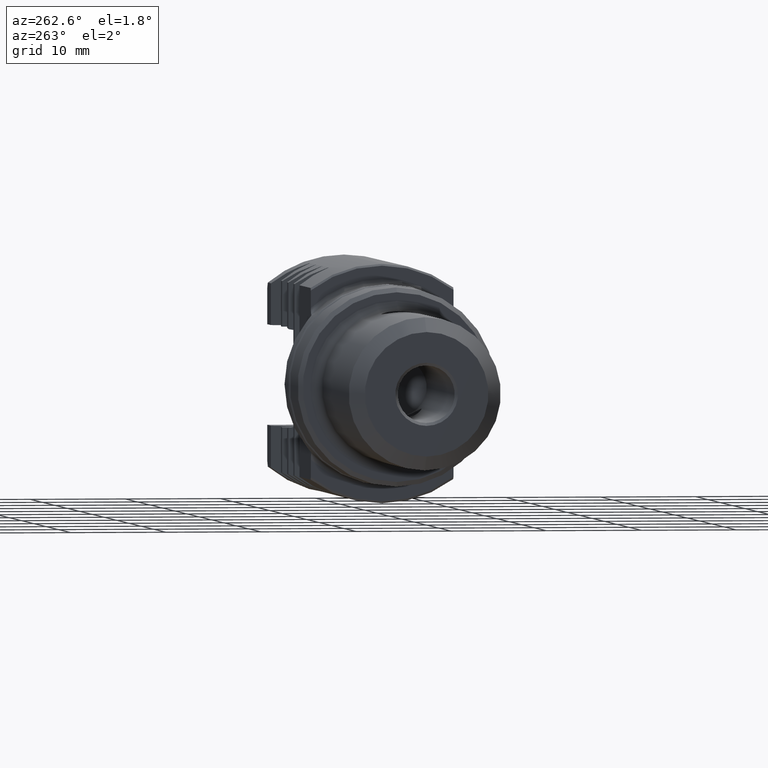
[diagram: clean part render]
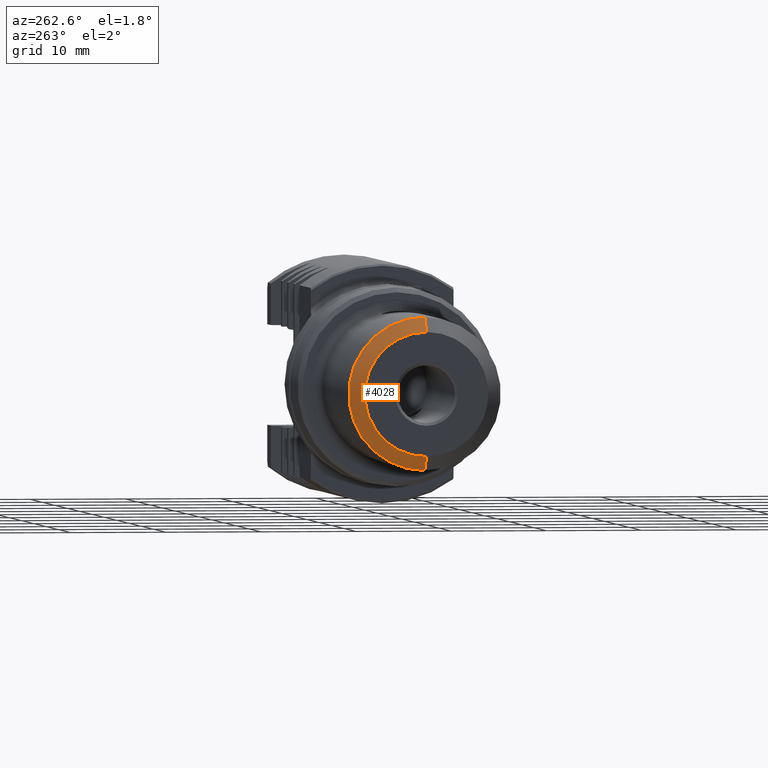
[diagram: same view with one face highlighted and labeled with its STEP entity id]
A machine part, auxiliary view. The second image highlights one B-rep face of the part: STEP entity #4028.
In plain terms, the highlighted conical surface has half-angle 45 deg.
Its self-contained STEP definition (entity closure, byte-faithful):
#103 = AXIS2_PLACEMENT_3D ( 'NONE', #2225, #4216, #1899 ) ;
#576 = DIRECTION ( 'NONE',  ( 0.7071067811865463500, 0.0000000000000000000, -0.7071067811865487900 ) ) ;
#608 = DIRECTION ( 'NONE',  ( 1.000000000000000000, 0.0000000000000000000, 0.0000000000000000000 ) ) ;
#612 = CARTESIAN_POINT ( 'NONE',  ( 1.500000000000001300, 0.0000000000000000000, 0.0000000000000000000 ) ) ;
#619 = DIRECTION ( 'NONE',  ( 0.0000000000000000000, 0.0000000000000000000, -1.000000000000000000 ) ) ;
#918 = FACE_OUTER_BOUND ( 'NONE', #2085, .T. ) ;
#1007 = CONICAL_SURFACE ( 'NONE', #3892, 8.000000000000000000, 0.7853981633974500600 ) ;
#1187 = VERTEX_POINT ( 'NONE', #3932 ) ;
#1409 = EDGE_CURVE ( 'NONE', #1436, #1871, #4125, .T. ) ;
#1436 = VERTEX_POINT ( 'NONE', #2517 ) ;
#1871 = VERTEX_POINT ( 'NONE', #4007 ) ;
#1899 = DIRECTION ( 'NONE',  ( 0.0000000000000000000, 0.0000000000000000000, 1.000000000000000000 ) ) ;
#2018 = LINE ( 'NONE', #2054, #2191 ) ;
#2054 = CARTESIAN_POINT ( 'NONE',  ( 1.500000000000001300, 0.0000000000000000000, -8.000000000000000000 ) ) ;
#2085 = EDGE_LOOP ( 'NONE', ( #3663, #2844, #3987, #4035 ) ) ;
#2191 = VECTOR ( 'NONE', #576, 1000.000000000000000 ) ;
#2225 = CARTESIAN_POINT ( 'NONE',  ( 0.0000000000000000000, 0.0000000000000000000, 0.0000000000000000000 ) ) ;
#2272 = EDGE_CURVE ( 'NONE', #2551, #1871, #2018, .T. ) ;
#2281 = EDGE_CURVE ( 'NONE', #1187, #2551, #3611, .T. ) ;
#2517 = CARTESIAN_POINT ( 'NONE',  ( 1.500000000000001300, 9.797174393178825700E-016, 8.000000000000000000 ) ) ;
#2551 = VERTEX_POINT ( 'NONE', #3117 ) ;
#2557 = DIRECTION ( 'NONE',  ( 0.7071067811865463500, 8.659560562354948900E-017, 0.7071067811865487900 ) ) ;
#2564 = CARTESIAN_POINT ( 'NONE',  ( 1.500000000000001300, 9.797174393178825700E-016, 8.000000000000000000 ) ) ;
#2779 = EDGE_CURVE ( 'NONE', #1187, #1436, #3649, .T. ) ;
#2833 = VECTOR ( 'NONE', #2557, 1000.000000000000000 ) ;
#2844 = ORIENTED_EDGE ( 'NONE', *, *, #2779, .T. ) ;
#3117 = CARTESIAN_POINT ( 'NONE',  ( 0.0000000000000000000, 0.0000000000000000000, -6.499999999999993800 ) ) ;
#3120 = AXIS2_PLACEMENT_3D ( 'NONE', #4084, #4098, #4109 ) ;
#3611 = CIRCLE ( 'NONE', #103, 6.499999999999993800 ) ;
#3649 = LINE ( 'NONE', #2564, #2833 ) ;
#3663 = ORIENTED_EDGE ( 'NONE', *, *, #2281, .F. ) ;
#3892 = AXIS2_PLACEMENT_3D ( 'NONE', #612, #608, #619 ) ;
#3932 = CARTESIAN_POINT ( 'NONE',  ( 0.0000000000000000000, 8.878689293818306100E-016, 6.499999999999993800 ) ) ;
#3987 = ORIENTED_EDGE ( 'NONE', *, *, #1409, .T. ) ;
#4007 = CARTESIAN_POINT ( 'NONE',  ( 1.500000000000001300, 0.0000000000000000000, -8.000000000000000000 ) ) ;
#4028 = ADVANCED_FACE ( 'NONE', ( #918 ), #1007, .T. ) ;
#4035 = ORIENTED_EDGE ( 'NONE', *, *, #2272, .F. ) ;
#4084 = CARTESIAN_POINT ( 'NONE',  ( 1.500000000000001300, 0.0000000000000000000, 0.0000000000000000000 ) ) ;
#4098 = DIRECTION ( 'NONE',  ( -1.000000000000000000, -0.0000000000000000000, -0.0000000000000000000 ) ) ;
#4109 = DIRECTION ( 'NONE',  ( 0.0000000000000000000, 0.0000000000000000000, 1.000000000000000000 ) ) ;
#4125 = CIRCLE ( 'NONE', #3120, 8.000000000000000000 ) ;
#4216 = DIRECTION ( 'NONE',  ( -1.000000000000000000, -0.0000000000000000000, -0.0000000000000000000 ) ) ;